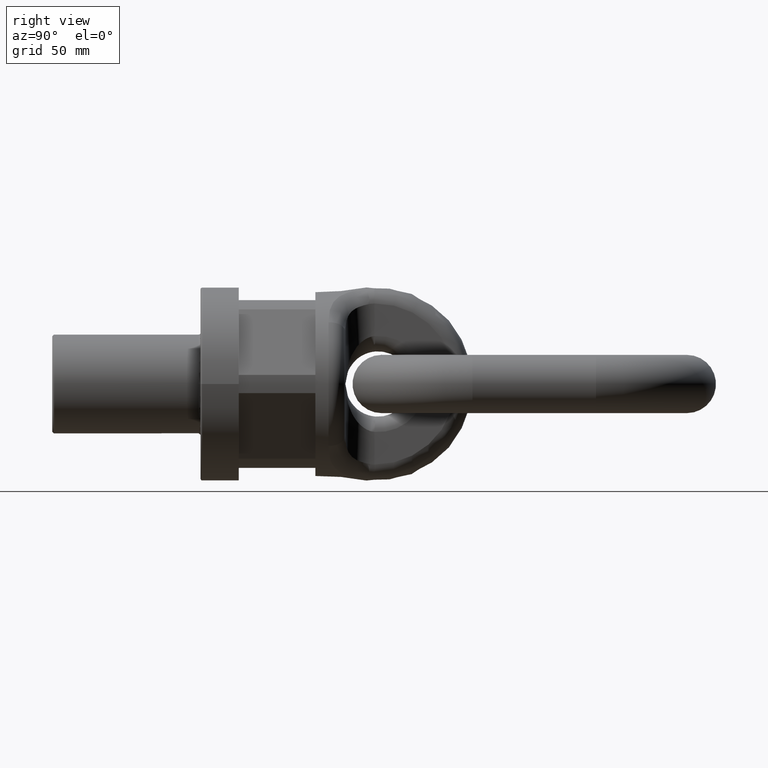
[diagram: clean part render]
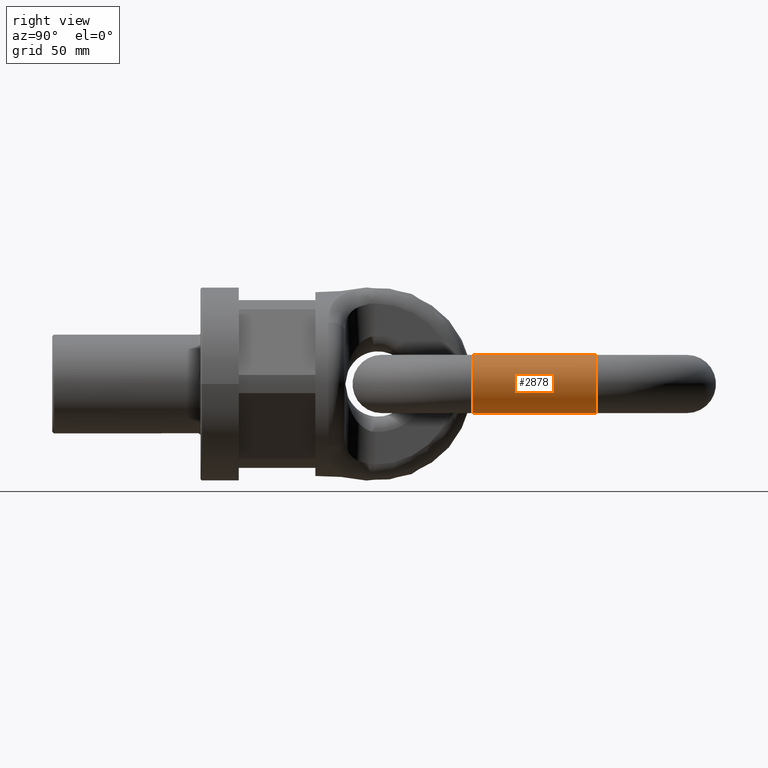
[diagram: same view with one face highlighted and labeled with its STEP entity id]
A machine part, right view. The second image highlights one B-rep face of the part: STEP entity #2878.
In plain terms, the highlighted cylindrical surface (bore or boss wall) has radius 16.5 mm, axis along (0, 1, 0).
Its self-contained STEP definition (entity closure, byte-faithful):
#2032=CYLINDRICAL_SURFACE('',#5799,16.5);
#2878=ADVANCED_FACE('',(#3053,#3054),#2032,.T.);
#3053=FACE_BOUND('',#3339,.T.);
#3054=FACE_BOUND('',#3340,.T.);
#3339=EDGE_LOOP('',(#4531));
#3340=EDGE_LOOP('',(#4532));
#4531=ORIENTED_EDGE('',*,*,#5527,.F.);
#4532=ORIENTED_EDGE('',*,*,#5528,.T.);
#4931=VERTEX_POINT('',#9831);
#4932=VERTEX_POINT('',#9834);
#5527=EDGE_CURVE('',#4931,#4931,#5593,.T.);
#5528=EDGE_CURVE('',#4932,#4932,#5594,.T.);
#5593=CIRCLE('',#5796,16.5);
#5594=CIRCLE('',#5798,16.5);
#5796=AXIS2_PLACEMENT_3D('',#9830,#6551,#6552);
#5798=AXIS2_PLACEMENT_3D('',#9833,#6555,#6556);
#5799=AXIS2_PLACEMENT_3D('',#9835,#6557,#6558);
#6551=DIRECTION('',(0.,-1.,0.));
#6552=DIRECTION('',(0.,0.,-1.));
#6555=DIRECTION('',(0.,-1.,0.));
#6556=DIRECTION('',(0.,0.,-1.));
#6557=DIRECTION('',(0.,1.,0.));
#6558=DIRECTION('',(0.,0.,1.));
#9830=CARTESIAN_POINT('',(51.5,154.,0.));
#9831=CARTESIAN_POINT('',(51.5,154.,-16.5));
#9833=CARTESIAN_POINT('',(51.5,224.,0.));
#9834=CARTESIAN_POINT('',(51.5,224.,-16.5));
#9835=CARTESIAN_POINT('',(51.5,154.,0.));